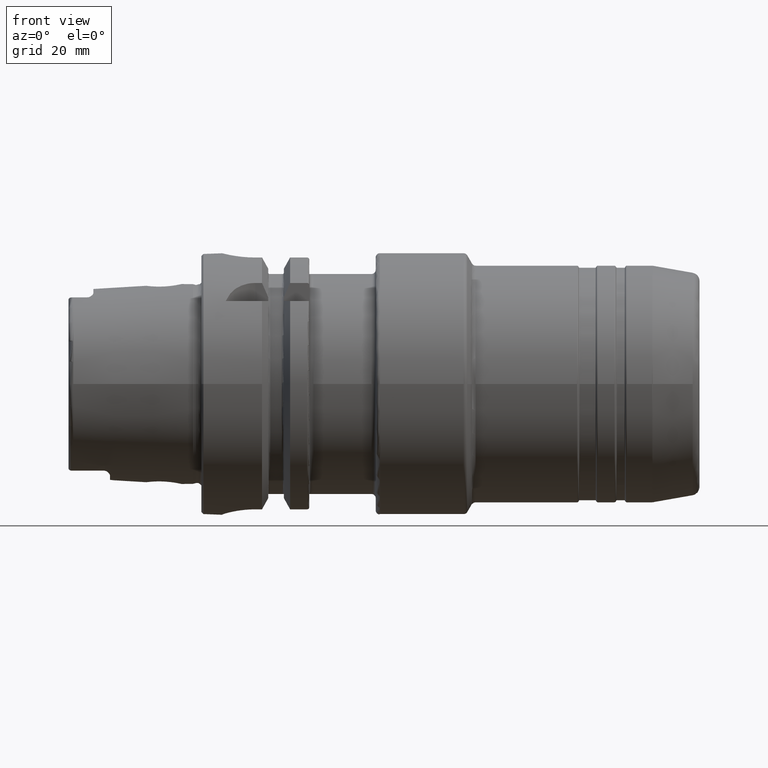
[diagram: clean part render]
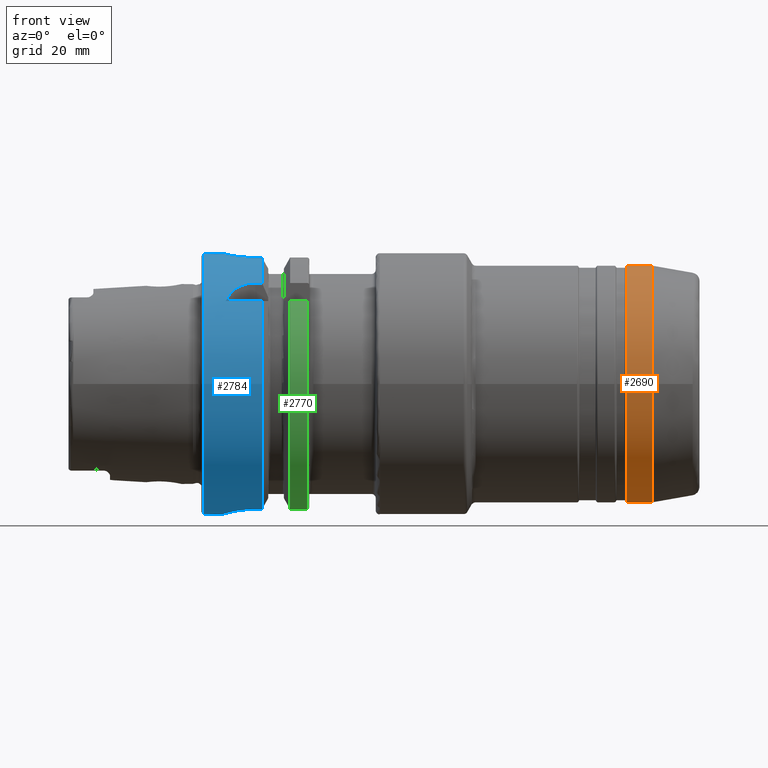
[diagram: same view with three faces highlighted in distinct colors, each labeled with its STEP entity id]
A machine part, front view with three faces highlighted in distinct colors.
Their STEP definitions:

[orange] entity #2690 — the highlighted cylindrical surface (bore or boss wall) has radius 28.5 mm, axis along (1, 0, 0).
#184=LINE('',#4217,#306);
#306=VECTOR('',#3348,28.5);
#424=CYLINDRICAL_SURFACE('',#2898,28.5);
#472=FACE_OUTER_BOUND('',#616,.T.);
#616=EDGE_LOOP('',(#1840,#1841,#1842,#1843,#1844,#1845,#1846,#1847));
#800=CIRCLE('',#2894,28.5);
#801=CIRCLE('',#2895,28.5);
#803=CIRCLE('',#2897,28.5);
#804=CIRCLE('',#2899,28.5);
#805=CIRCLE('',#2900,28.5);
#806=CIRCLE('',#2901,28.5);
#1035=VERTEX_POINT('',#4204);
#1036=VERTEX_POINT('',#4205);
#1037=VERTEX_POINT('',#4207);
#1038=VERTEX_POINT('',#4212);
#1039=VERTEX_POINT('',#4213);
#1040=VERTEX_POINT('',#4215);
#1353=EDGE_CURVE('',#1035,#1036,#800,.T.);
#1354=EDGE_CURVE('',#1036,#1037,#801,.T.);
#1356=EDGE_CURVE('',#1037,#1035,#803,.T.);
#1357=EDGE_CURVE('',#1038,#1039,#804,.T.);
#1358=EDGE_CURVE('',#1040,#1038,#805,.T.);
#1359=EDGE_CURVE('',#1040,#1036,#184,.T.);
#1360=EDGE_CURVE('',#1039,#1040,#806,.T.);
#1840=ORIENTED_EDGE('',*,*,#1357,.F.);
#1841=ORIENTED_EDGE('',*,*,#1358,.F.);
#1842=ORIENTED_EDGE('',*,*,#1359,.T.);
#1843=ORIENTED_EDGE('',*,*,#1353,.F.);
#1844=ORIENTED_EDGE('',*,*,#1356,.F.);
#1845=ORIENTED_EDGE('',*,*,#1354,.F.);
#1846=ORIENTED_EDGE('',*,*,#1359,.F.);
#1847=ORIENTED_EDGE('',*,*,#1360,.F.);
#2690=ADVANCED_FACE('',(#472),#424,.T.);
#2894=AXIS2_PLACEMENT_3D('',#4206,#3334,#3335);
#2895=AXIS2_PLACEMENT_3D('',#4208,#3336,#3337);
#2897=AXIS2_PLACEMENT_3D('',#4210,#3340,#3341);
#2898=AXIS2_PLACEMENT_3D('',#4211,#3342,#3343);
#2899=AXIS2_PLACEMENT_3D('',#4214,#3344,#3345);
#2900=AXIS2_PLACEMENT_3D('',#4216,#3346,#3347);
#2901=AXIS2_PLACEMENT_3D('',#4218,#3349,#3350);
#3334=DIRECTION('center_axis',(-1.,0.,0.));
#3335=DIRECTION('ref_axis',(0.,-1.,1.83697019872103E-16));
#3336=DIRECTION('center_axis',(-1.,0.,0.));
#3337=DIRECTION('ref_axis',(0.,-1.,1.83697019872103E-16));
#3340=DIRECTION('center_axis',(-1.,0.,0.));
#3341=DIRECTION('ref_axis',(0.,-1.,1.83697019872103E-16));
#3342=DIRECTION('center_axis',(1.,0.,0.));
#3343=DIRECTION('ref_axis',(0.,1.,0.));
#3344=DIRECTION('center_axis',(1.,0.,0.));
#3345=DIRECTION('ref_axis',(0.,-1.,1.83697019872103E-16));
#3346=DIRECTION('center_axis',(1.,0.,0.));
#3347=DIRECTION('ref_axis',(0.,-1.,1.83697019872103E-16));
#3348=DIRECTION('',(-1.,0.,0.));
#3349=DIRECTION('center_axis',(1.,0.,0.));
#3350=DIRECTION('ref_axis',(0.,-1.,1.83697019872103E-16));
#4204=CARTESIAN_POINT('',(102.519615242271,28.5,-8.72560844392489E-15));
#4205=CARTESIAN_POINT('',(102.519615242271,-28.5,-3.49024337756996E-15));
#4206=CARTESIAN_POINT('Origin',(102.519615242271,0.,0.));
#4207=CARTESIAN_POINT('',(102.519615242271,-3.49024337756996E-15,28.5));
#4208=CARTESIAN_POINT('Origin',(102.519615242271,0.,0.));
#4210=CARTESIAN_POINT('Origin',(102.519615242271,0.,0.));
#4211=CARTESIAN_POINT('Origin',(105.47305574768,0.,0.));
#4212=CARTESIAN_POINT('',(108.569947697239,28.5,-1.74512168878498E-15));
#4213=CARTESIAN_POINT('',(108.569947697239,-3.49024337756996E-15,28.5));
#4214=CARTESIAN_POINT('Origin',(108.569947697239,0.,0.));
#4215=CARTESIAN_POINT('',(108.569947697239,-28.5,-3.49024337756996E-15));
#4216=CARTESIAN_POINT('Origin',(108.569947697239,0.,0.));
#4217=CARTESIAN_POINT('',(105.47305574768,-28.5,-3.49024337756996E-15));
#4218=CARTESIAN_POINT('Origin',(108.569947697239,0.,0.));

[blue] entity #2784 — the highlighted cylindrical surface (bore or boss wall) has radius 31.5 mm, axis along (1, 0, 0).
#44=FACE_BOUND('',#718,.T.);
#121=B_SPLINE_CURVE_WITH_KNOTS('',3,(#5330,#5331,#5332,#5333,#5334,#5335,
#5336,#5337,#5338,#5339,#5340,#5341,#5342,#5343,#5344,#5345,#5346,#5347,
#5348,#5349,#5350,#5351,#5352,#5353,#5354,#5355),.UNSPECIFIED.,.F.,.F.,
(4,2,2,2,2,2,2,2,2,2,2,2,4),(0.,0.188688694287611,0.377377388575223,0.56606194688798,
0.754746505200737,0.943431063513494,1.13211562182625,1.32080431611386,1.50949301040147,
1.69818170468909,1.8868703989767,2.07555495728945,2.26423951560221),
 .UNSPECIFIED.);
#122=B_SPLINE_CURVE_WITH_KNOTS('',3,(#5356,#5357,#5358,#5359,#5360,#5361,
#5362,#5363,#5364,#5365),.UNSPECIFIED.,.F.,.F.,(4,2,2,2,4),(2.26423951560221,
2.45292407391497,2.64160863222772,2.83029732651534,3.01898602080295),
 .UNSPECIFIED.);
#125=B_SPLINE_CURVE_WITH_KNOTS('',3,(#5421,#5422,#5423,#5424,#5425,#5426,
#5427,#5428,#5429,#5430,#5431,#5432),.UNSPECIFIED.,.F.,.F.,(4,2,2,2,2,4),
(1.1085154204615,1.31979218709236,1.52798350480179,1.73617482251122,1.90421770126337,
2.07226058001552),.UNSPECIFIED.);
#135=B_SPLINE_CURVE_WITH_KNOTS('',3,(#5601,#5602,#5603,#5604,#5605,#5606,
#5607,#5608,#5609,#5610),.UNSPECIFIED.,.F.,.F.,(4,2,2,2,4),(0.,0.30293011231322,
0.605860224626439,0.90976031392917,1.2136604032319),.UNSPECIFIED.);
#136=B_SPLINE_CURVE_WITH_KNOTS('',3,(#5619,#5620,#5621,#5622,#5623,#5624,
#5625,#5626,#5627,#5628),.UNSPECIFIED.,.F.,.F.,(4,2,2,2,4),(1.20927420824097,
1.5131742975437,1.81707438684643,2.12000449915965,2.42293461147287),
 .UNSPECIFIED.);
#148=B_SPLINE_CURVE_WITH_KNOTS('',3,(#5789,#5790,#5791,#5792,#5793,#5794,
#5795,#5796,#5797,#5798,#5799,#5800,#5801,#5802,#5803,#5804,#5805,#5806),
 .UNSPECIFIED.,.F.,.F.,(4,2,2,2,2,2,2,2,4),(0.,0.302805879979318,0.605611759958635,
0.908372461246501,1.21113316253437,1.51389386382223,1.8166545651101,2.11946044508942,
2.42226632506874),.UNSPECIFIED.);
#240=LINE('',#5396,#362);
#245=LINE('',#5441,#367);
#265=LINE('',#5635,#387);
#266=LINE('',#5638,#388);
#275=LINE('',#5783,#397);
#277=LINE('',#5811,#399);
#281=LINE('',#5821,#403);
#362=VECTOR('',#3732,10.);
#367=VECTOR('',#3743,10.);
#387=VECTOR('',#3815,10.);
#388=VECTOR('',#3818,10.);
#397=VECTOR('',#3885,10.);
#399=VECTOR('',#3893,10.);
#403=VECTOR('',#3907,31.5);
#448=CYLINDRICAL_SURFACE('',#3130,31.5);
#566=FACE_OUTER_BOUND('',#717,.T.);
#717=EDGE_LOOP('',(#2415,#2416,#2417,#2418,#2419,#2420,#2421,#2422,#2423,
#2424,#2425,#2426,#2427,#2428,#2429,#2430,#2431,#2432,#2433));
#718=EDGE_LOOP('',(#2434,#2435));
#920=CIRCLE('',#3073,31.5);
#921=CIRCLE('',#3074,31.5);
#929=CIRCLE('',#3091,31.5);
#930=CIRCLE('',#3096,31.5);
#944=CIRCLE('',#3131,31.5);
#945=CIRCLE('',#3132,31.5);
#946=CIRCLE('',#3133,31.5);
#1190=VERTEX_POINT('',#5327);
#1191=VERTEX_POINT('',#5329);
#1199=VERTEX_POINT('',#5393);
#1200=VERTEX_POINT('',#5395);
#1204=VERTEX_POINT('',#5420);
#1206=VERTEX_POINT('',#5437);
#1211=VERTEX_POINT('',#5453);
#1212=VERTEX_POINT('',#5455);
#1237=VERTEX_POINT('',#5599);
#1238=VERTEX_POINT('',#5600);
#1239=VERTEX_POINT('',#5614);
#1240=VERTEX_POINT('',#5618);
#1241=VERTEX_POINT('',#5637);
#1244=VERTEX_POINT('',#5650);
#1260=VERTEX_POINT('',#5780);
#1261=VERTEX_POINT('',#5782);
#1262=VERTEX_POINT('',#5788);
#1264=VERTEX_POINT('',#5820);
#1265=VERTEX_POINT('',#5822);
#1559=EDGE_CURVE('',#1191,#1190,#121,.T.);
#1560=EDGE_CURVE('',#1190,#1191,#122,.T.);
#1569=EDGE_CURVE('',#1200,#1199,#240,.T.);
#1575=EDGE_CURVE('',#1199,#1204,#125,.T.);
#1579=EDGE_CURVE('',#1204,#1206,#245,.T.);
#1585=EDGE_CURVE('',#1200,#1211,#920,.T.);
#1586=EDGE_CURVE('',#1211,#1212,#921,.T.);
#1620=EDGE_CURVE('',#1237,#1238,#135,.T.);
#1623=EDGE_CURVE('',#1238,#1239,#929,.T.);
#1625=EDGE_CURVE('',#1239,#1240,#136,.T.);
#1628=EDGE_CURVE('',#1240,#1212,#265,.T.);
#1629=EDGE_CURVE('',#1241,#1237,#266,.T.);
#1633=EDGE_CURVE('',#1241,#1244,#930,.T.);
#1664=EDGE_CURVE('',#1261,#1260,#275,.T.);
#1666=EDGE_CURVE('',#1260,#1262,#148,.T.);
#1669=EDGE_CURVE('',#1262,#1244,#277,.T.);
#1673=EDGE_CURVE('',#1261,#1206,#944,.T.);
#1674=EDGE_CURVE('',#1211,#1264,#281,.T.);
#1675=EDGE_CURVE('',#1264,#1265,#945,.T.);
#1676=EDGE_CURVE('',#1265,#1264,#946,.T.);
#2415=ORIENTED_EDGE('',*,*,#1579,.T.);
#2416=ORIENTED_EDGE('',*,*,#1673,.F.);
#2417=ORIENTED_EDGE('',*,*,#1664,.T.);
#2418=ORIENTED_EDGE('',*,*,#1666,.T.);
#2419=ORIENTED_EDGE('',*,*,#1669,.T.);
#2420=ORIENTED_EDGE('',*,*,#1633,.F.);
#2421=ORIENTED_EDGE('',*,*,#1629,.T.);
#2422=ORIENTED_EDGE('',*,*,#1620,.T.);
#2423=ORIENTED_EDGE('',*,*,#1623,.T.);
#2424=ORIENTED_EDGE('',*,*,#1625,.T.);
#2425=ORIENTED_EDGE('',*,*,#1628,.T.);
#2426=ORIENTED_EDGE('',*,*,#1586,.F.);
#2427=ORIENTED_EDGE('',*,*,#1674,.T.);
#2428=ORIENTED_EDGE('',*,*,#1675,.T.);
#2429=ORIENTED_EDGE('',*,*,#1676,.T.);
#2430=ORIENTED_EDGE('',*,*,#1674,.F.);
#2431=ORIENTED_EDGE('',*,*,#1585,.F.);
#2432=ORIENTED_EDGE('',*,*,#1569,.T.);
#2433=ORIENTED_EDGE('',*,*,#1575,.T.);
#2434=ORIENTED_EDGE('',*,*,#1559,.T.);
#2435=ORIENTED_EDGE('',*,*,#1560,.T.);
#2784=ADVANCED_FACE('',(#566,#44),#448,.T.);
#3073=AXIS2_PLACEMENT_3D('',#5454,#3756,#3757);
#3074=AXIS2_PLACEMENT_3D('',#5456,#3758,#3759);
#3091=AXIS2_PLACEMENT_3D('',#5615,#3807,#3808);
#3096=AXIS2_PLACEMENT_3D('',#5651,#3822,#3823);
#3130=AXIS2_PLACEMENT_3D('',#5818,#3903,#3904);
#3131=AXIS2_PLACEMENT_3D('',#5819,#3905,#3906);
#3132=AXIS2_PLACEMENT_3D('',#5823,#3908,#3909);
#3133=AXIS2_PLACEMENT_3D('',#5824,#3910,#3911);
#3732=DIRECTION('',(-1.,0.,0.));
#3743=DIRECTION('',(1.,0.,0.));
#3756=DIRECTION('center_axis',(1.,0.,0.));
#3757=DIRECTION('ref_axis',(0.,0.,-1.));
#3758=DIRECTION('center_axis',(1.,0.,0.));
#3759=DIRECTION('ref_axis',(0.,0.,-1.));
#3807=DIRECTION('center_axis',(-1.,0.,0.));
#3808=DIRECTION('ref_axis',(0.,1.,0.));
#3815=DIRECTION('',(1.,0.,0.));
#3818=DIRECTION('',(-1.,0.,0.));
#3822=DIRECTION('center_axis',(1.,0.,0.));
#3823=DIRECTION('ref_axis',(0.,0.,-1.));
#3885=DIRECTION('',(-1.,0.,0.));
#3893=DIRECTION('',(1.,0.,0.));
#3903=DIRECTION('center_axis',(1.,0.,0.));
#3904=DIRECTION('ref_axis',(0.,1.,0.));
#3905=DIRECTION('center_axis',(1.,0.,0.));
#3906=DIRECTION('ref_axis',(0.,0.,-1.));
#3907=DIRECTION('',(-1.,0.,0.));
#3908=DIRECTION('center_axis',(1.,0.,0.));
#3909=DIRECTION('ref_axis',(0.,0.,-1.));
#3910=DIRECTION('center_axis',(1.,0.,0.));
#3911=DIRECTION('ref_axis',(0.,0.,-1.));
#5327=CARTESIAN_POINT('',(12.,31.5,-6.12323399573677E-16));
#5329=CARTESIAN_POINT('',(7.,31.100643080168,5.));
#5330=CARTESIAN_POINT('Ctrl Pts',(7.,31.100643080168,5.));
#5331=CARTESIAN_POINT('Ctrl Pts',(6.37103768570796,31.100643080168,5.));
#5332=CARTESIAN_POINT('Ctrl Pts',(5.70089281579202,31.1216953112949,4.87408354368814));
#5333=CARTESIAN_POINT('Ctrl Pts',(4.46931934300962,31.1973810209855,4.36348784122736));
#5334=CARTESIAN_POINT('Ctrl Pts',(3.90779781350673,31.2508828501623,3.97886562537221));
#5335=CARTESIAN_POINT('Ctrl Pts',(3.021144092268,31.3510329557602,3.09221190413348));
#5336=CARTESIAN_POINT('Ctrl Pts',(2.63651425348544,31.4042391414288,2.5306861925578));
#5337=CARTESIAN_POINT('Ctrl Pts',(2.12591301120586,31.4792463697936,1.29909839144709));
#5338=CARTESIAN_POINT('Ctrl Pts',(2.,31.5,0.62894852770919));
#5339=CARTESIAN_POINT('Ctrl Pts',(2.,31.5,-0.62894852770919));
#5340=CARTESIAN_POINT('Ctrl Pts',(2.12591301120586,31.4792463697936,-1.29909839144709));
#5341=CARTESIAN_POINT('Ctrl Pts',(2.63651425348544,31.4042391414288,-2.5306861925578));
#5342=CARTESIAN_POINT('Ctrl Pts',(3.021144092268,31.3510329557602,-3.09221190413348));
#5343=CARTESIAN_POINT('Ctrl Pts',(3.90779781350673,31.2508828501623,-3.97886562537221));
#5344=CARTESIAN_POINT('Ctrl Pts',(4.46931934300962,31.1973810209855,-4.36348784122736));
#5345=CARTESIAN_POINT('Ctrl Pts',(5.70089281579202,31.1216953112949,-4.87408354368814));
#5346=CARTESIAN_POINT('Ctrl Pts',(6.37103768570796,31.100643080168,-5.));
#5347=CARTESIAN_POINT('Ctrl Pts',(7.62896231429203,31.100643080168,-5.));
#5348=CARTESIAN_POINT('Ctrl Pts',(8.29910718420797,31.1216953112949,-4.87408354368814));
#5349=CARTESIAN_POINT('Ctrl Pts',(9.53068065699038,31.1973810209855,-4.36348784122736));
#5350=CARTESIAN_POINT('Ctrl Pts',(10.0922021864933,31.2508828501623,-3.97886562537221));
#5351=CARTESIAN_POINT('Ctrl Pts',(10.978855907732,31.3510329557602,-3.09221190413348));
#5352=CARTESIAN_POINT('Ctrl Pts',(11.3634857465146,31.4042391414288,-2.5306861925578));
#5353=CARTESIAN_POINT('Ctrl Pts',(11.8740869887941,31.4792463697936,-1.29909839144709));
#5354=CARTESIAN_POINT('Ctrl Pts',(12.,31.5,-0.628948527709191));
#5355=CARTESIAN_POINT('Ctrl Pts',(12.,31.5,-5.55111512312578E-16));
#5356=CARTESIAN_POINT('Ctrl Pts',(12.,31.5,-1.38777878078145E-16));
#5357=CARTESIAN_POINT('Ctrl Pts',(12.,31.5,0.628948527709191));
#5358=CARTESIAN_POINT('Ctrl Pts',(11.8740869887941,31.4792463697936,1.29909839144709));
#5359=CARTESIAN_POINT('Ctrl Pts',(11.3634857465146,31.4042391414288,2.5306861925578));
#5360=CARTESIAN_POINT('Ctrl Pts',(10.978855907732,31.3510329557602,3.09221190413348));
#5361=CARTESIAN_POINT('Ctrl Pts',(10.0922021864933,31.2508828501623,3.97886562537221));
#5362=CARTESIAN_POINT('Ctrl Pts',(9.53068065699038,31.1973810209855,4.36348784122736));
#5363=CARTESIAN_POINT('Ctrl Pts',(8.29910718420797,31.1216953112949,4.87408354368813));
#5364=CARTESIAN_POINT('Ctrl Pts',(7.62896231429203,31.100643080168,5.));
#5365=CARTESIAN_POINT('Ctrl Pts',(6.99999999999999,31.100643080168,5.));
#5393=CARTESIAN_POINT('',(5.88828609634419,-24.3361870472759,20.));
#5395=CARTESIAN_POINT('',(14.6225009252407,-24.3361870472759,20.));
#5396=CARTESIAN_POINT('',(7.56125046262034,-24.3361870472759,20.));
#5420=CARTESIAN_POINT('',(13.,-20.,24.3361870472759));
#5421=CARTESIAN_POINT('Ctrl Pts',(5.88828609634419,-24.3361870472759,20.));
#5422=CARTESIAN_POINT('Ctrl Pts',(6.11069532820048,-23.9044753723342,20.5253108035937));
#5423=CARTESIAN_POINT('Ctrl Pts',(6.38325999044306,-23.4713523250807,21.0173865932788));
#5424=CARTESIAN_POINT('Ctrl Pts',(7.044898076458,-22.6317364276543,21.9186738868096));
#5425=CARTESIAN_POINT('Ctrl Pts',(7.46714468561685,-22.1861072682036,22.3682920878559));
#5426=CARTESIAN_POINT('Ctrl Pts',(8.46725531403812,-21.3767026700071,23.143042657319));
#5427=CARTESIAN_POINT('Ctrl Pts',(9.04646427720221,-21.0147449478223,23.4683362269255));
#5428=CARTESIAN_POINT('Ctrl Pts',(10.1145001432702,-20.5200081116516,23.9011603796022));
#5429=CARTESIAN_POINT('Ctrl Pts',(10.670823971716,-20.3234249831704,24.0673462447194));
#5430=CARTESIAN_POINT('Ctrl Pts',(11.8334528721306,-20.063121855676,24.2847667849476));
#5431=CARTESIAN_POINT('Ctrl Pts',(12.4398570708262,-20.,24.3361870472759));
#5432=CARTESIAN_POINT('Ctrl Pts',(13.,-20.,24.3361870472759));
#5437=CARTESIAN_POINT('',(14.6225009252407,-20.,24.3361870472759));
#5441=CARTESIAN_POINT('',(7.56125046262035,-20.,24.3361870472759));
#5453=CARTESIAN_POINT('',(14.6225009252407,-31.5,-3.85763741731416E-15));
#5454=CARTESIAN_POINT('Origin',(14.6225009252407,0.,0.));
#5455=CARTESIAN_POINT('',(14.6225009252407,-9.,-30.1869176962472));
#5456=CARTESIAN_POINT('Origin',(14.6225009252407,0.,0.));
#5599=CARTESIAN_POINT('',(13.,9.00000000000001,-30.1869176962472));
#5600=CARTESIAN_POINT('',(5.,1.,-31.4841229828623));
#5601=CARTESIAN_POINT('Ctrl Pts',(13.,9.00000000000001,-30.1869176962472));
#5602=CARTESIAN_POINT('Ctrl Pts',(11.9902329589559,9.00000000000001,-30.1869176962472));
#5603=CARTESIAN_POINT('Ctrl Pts',(10.9171740660538,8.79719825889175,-30.2496070227108));
#5604=CARTESIAN_POINT('Ctrl Pts',(8.9496642215883,7.98063403850822,-30.4752177477269));
#5605=CARTESIAN_POINT('Ctrl Pts',(8.05472493283182,7.3671500962837,-30.6348764237341));
#5606=CARTESIAN_POINT('Ctrl Pts',(6.63955745341061,5.95454409907419,-30.9405445582004));
#5607=CARTESIAN_POINT('Ctrl Pts',(6.02370102555041,5.0583660804473,-31.1070804719497));
#5608=CARTESIAN_POINT('Ctrl Pts',(5.2037733306458,3.08756640398172,-31.3640631381934));
#5609=CARTESIAN_POINT('Ctrl Pts',(5.,2.01248971281588,-31.4519642432536));
#5610=CARTESIAN_POINT('Ctrl Pts',(5.,1.00000000000001,-31.4841229828623));
#5614=CARTESIAN_POINT('',(5.,-0.999999999999999,-31.4841229828623));
#5615=CARTESIAN_POINT('Origin',(5.,0.,0.));
#5618=CARTESIAN_POINT('',(13.,-9.,-30.1869176962472));
#5619=CARTESIAN_POINT('Ctrl Pts',(5.,-0.999999999999997,-31.4841229828623));
#5620=CARTESIAN_POINT('Ctrl Pts',(5.,-2.01248971281587,-31.4519642432536));
#5621=CARTESIAN_POINT('Ctrl Pts',(5.2037733306458,-3.08756640398171,-31.3640631381934));
#5622=CARTESIAN_POINT('Ctrl Pts',(6.02370102555041,-5.05836608044729,-31.1070804719497));
#5623=CARTESIAN_POINT('Ctrl Pts',(6.63955745341061,-5.95454409907418,-30.9405445582004));
#5624=CARTESIAN_POINT('Ctrl Pts',(8.05472493283182,-7.36715009628369,-30.6348764237341));
#5625=CARTESIAN_POINT('Ctrl Pts',(8.9496642215883,-7.98063403850821,-30.4752177477269));
#5626=CARTESIAN_POINT('Ctrl Pts',(10.9171740660538,-8.79719825889174,-30.2496070227108));
#5627=CARTESIAN_POINT('Ctrl Pts',(11.9902329589559,-9.,-30.1869176962472));
#5628=CARTESIAN_POINT('Ctrl Pts',(13.,-9.,-30.1869176962472));
#5635=CARTESIAN_POINT('',(7.56125046262035,-8.99999999999999,-30.1869176962472));
#5637=CARTESIAN_POINT('',(14.6225009252407,9.,-30.1869176962472));
#5638=CARTESIAN_POINT('',(7.56125046262034,9.00000000000001,-30.1869176962472));
#5650=CARTESIAN_POINT('',(14.6225009252407,8.,30.4671954731642));
#5651=CARTESIAN_POINT('Origin',(14.6225009252407,0.,0.));
#5780=CARTESIAN_POINT('',(13.,-8.,30.4671954731642));
#5782=CARTESIAN_POINT('',(14.6225009252407,-8.,30.4671954731642));
#5783=CARTESIAN_POINT('',(7.56125046262034,-8.,30.4671954731642));
#5788=CARTESIAN_POINT('',(13.,8.,30.4671954731642));
#5789=CARTESIAN_POINT('Ctrl Pts',(13.,-8.,30.4671954731643));
#5790=CARTESIAN_POINT('Ctrl Pts',(11.9906470667356,-8.,30.4671954731643));
#5791=CARTESIAN_POINT('Ctrl Pts',(10.9172075930168,-7.79737202490167,30.5225803085525));
#5792=CARTESIAN_POINT('Ctrl Pts',(8.94758399331801,-6.97961067526075,30.719895002943));
#5793=CARTESIAN_POINT('Ctrl Pts',(8.05099322370438,-6.36470172268915,30.8586830127239));
#5794=CARTESIAN_POINT('Ctrl Pts',(6.63540388828045,-4.94911238726521,31.1170994373341));
#5795=CARTESIAN_POINT('Ctrl Pts',(6.02041263015313,-4.05247770930662,31.2539072689014));
#5796=CARTESIAN_POINT('Ctrl Pts',(5.20259114887399,-2.08269813865027,31.4466478906396));
#5797=CARTESIAN_POINT('Ctrl Pts',(5.,-1.00920233762622,31.5));
#5798=CARTESIAN_POINT('Ctrl Pts',(5.,1.00920233762622,31.5));
#5799=CARTESIAN_POINT('Ctrl Pts',(5.20259114887399,2.08269813865027,31.4466478906396));
#5800=CARTESIAN_POINT('Ctrl Pts',(6.02041263015313,4.05247770930662,31.2539072689014));
#5801=CARTESIAN_POINT('Ctrl Pts',(6.63540388828045,4.94911238726521,31.1170994373341));
#5802=CARTESIAN_POINT('Ctrl Pts',(8.05099322370439,6.36470172268915,30.8586830127239));
#5803=CARTESIAN_POINT('Ctrl Pts',(8.94758399331801,6.97961067526075,30.719895002943));
#5804=CARTESIAN_POINT('Ctrl Pts',(10.9172075930168,7.79737202490167,30.5225803085525));
#5805=CARTESIAN_POINT('Ctrl Pts',(11.9906470667356,8.,30.4671954731643));
#5806=CARTESIAN_POINT('Ctrl Pts',(13.,8.,30.4671954731643));
#5811=CARTESIAN_POINT('',(7.56125046262035,8.,30.4671954731642));
#5818=CARTESIAN_POINT('Origin',(7.56125046262034,0.,0.));
#5819=CARTESIAN_POINT('Origin',(14.6225009252407,0.,0.));
#5820=CARTESIAN_POINT('',(0.5,-31.5,-3.85763741731416E-15));
#5821=CARTESIAN_POINT('',(7.56125046262034,-31.5,-3.85763741731416E-15));
#5822=CARTESIAN_POINT('',(0.5,31.5,0.));
#5823=CARTESIAN_POINT('Origin',(0.5,0.,0.));
#5824=CARTESIAN_POINT('Origin',(0.5,0.,0.));

[green] entity #2770 — the highlighted cylindrical surface (partial cylindrical patch) has radius 31.5 mm, axis along (1, 0, 0).
#236=LINE('',#5375,#358);
#252=LINE('',#5510,#374);
#358=VECTOR('',#3724,10.);
#374=VECTOR('',#3784,10.);
#444=CYLINDRICAL_SURFACE('',#3110,31.5);
#552=FACE_OUTER_BOUND('',#703,.T.);
#703=EDGE_LOOP('',(#2334,#2335,#2336,#2337));
#936=CIRCLE('',#3107,31.5);
#938=CIRCLE('',#3111,31.5);
#1194=VERTEX_POINT('',#5370);
#1195=VERTEX_POINT('',#5374);
#1220=VERTEX_POINT('',#5498);
#1221=VERTEX_POINT('',#5509);
#1563=EDGE_CURVE('',#1195,#1194,#236,.T.);
#1601=EDGE_CURVE('',#1221,#1220,#252,.T.);
#1646=EDGE_CURVE('',#1195,#1220,#936,.T.);
#1649=EDGE_CURVE('',#1194,#1221,#938,.T.);
#2334=ORIENTED_EDGE('',*,*,#1563,.T.);
#2335=ORIENTED_EDGE('',*,*,#1649,.T.);
#2336=ORIENTED_EDGE('',*,*,#1601,.T.);
#2337=ORIENTED_EDGE('',*,*,#1646,.F.);
#2770=ADVANCED_FACE('',(#552),#444,.T.);
#3107=AXIS2_PLACEMENT_3D('',#5715,#3845,#3846);
#3110=AXIS2_PLACEMENT_3D('',#5720,#3852,#3853);
#3111=AXIS2_PLACEMENT_3D('',#5721,#3854,#3855);
#3724=DIRECTION('',(-1.,0.,0.));
#3784=DIRECTION('',(1.,0.,0.));
#3845=DIRECTION('center_axis',(1.,0.,0.));
#3846=DIRECTION('ref_axis',(0.,0.,-1.));
#3852=DIRECTION('center_axis',(1.,0.,0.));
#3853=DIRECTION('ref_axis',(0.,-0.956344671622108,-0.292241114595468));
#3854=DIRECTION('center_axis',(1.,0.,0.));
#3855=DIRECTION('ref_axis',(0.,0.,-1.));
#5370=CARTESIAN_POINT('',(21.3774990747593,-24.3361870472759,20.));
#5374=CARTESIAN_POINT('',(25.5,-24.3361870472759,20.));
#5375=CARTESIAN_POINT('',(23.4387495373797,-24.3361870472759,20.));
#5498=CARTESIAN_POINT('',(25.5,-9.,-30.1869176962472));
#5509=CARTESIAN_POINT('',(21.3774990747593,-9.,-30.1869176962472));
#5510=CARTESIAN_POINT('',(23.4387495373797,-9.,-30.1869176962472));
#5715=CARTESIAN_POINT('Origin',(25.5,0.,0.));
#5720=CARTESIAN_POINT('Origin',(23.4387495373797,0.,0.));
#5721=CARTESIAN_POINT('Origin',(21.3774990747593,0.,0.));